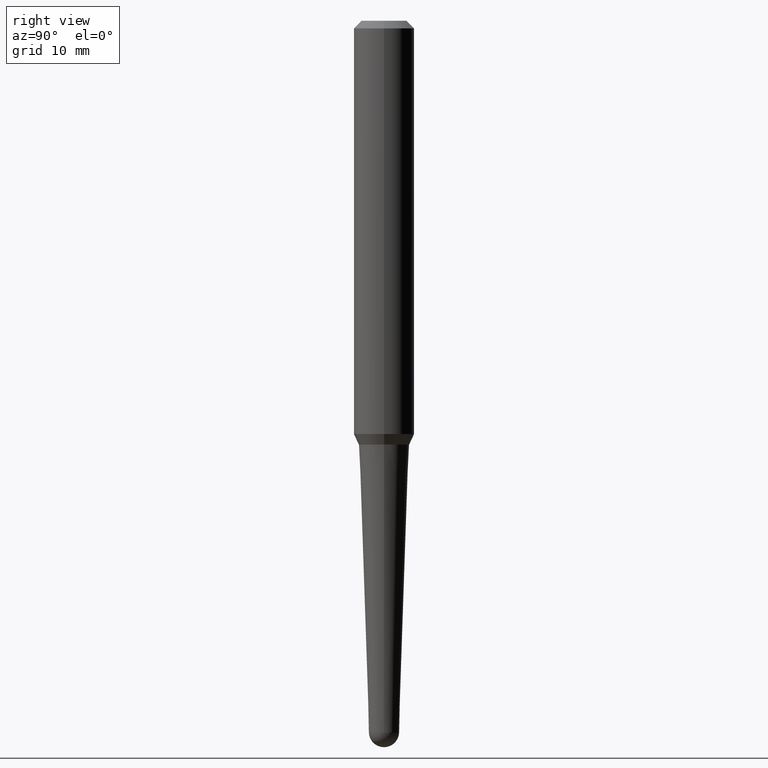
[diagram: clean part render]
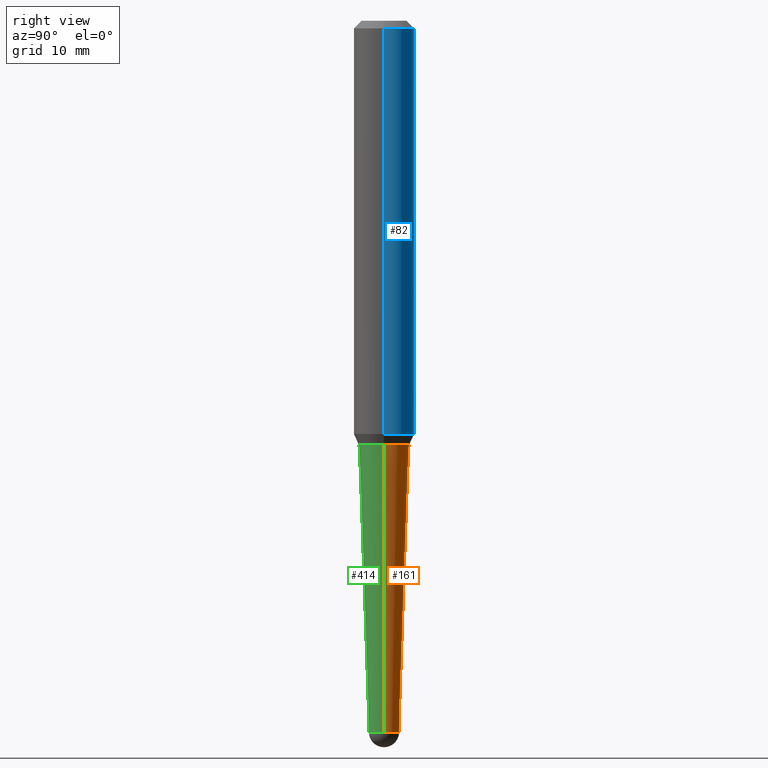
[diagram: same view with three faces highlighted in distinct colors, each labeled with its STEP entity id]
A machine part, right view with three faces highlighted in distinct colors.
Their STEP definitions:

[orange] entity #161 — the highlighted conical surface has half-angle 2 deg.
#11 = DIRECTION ( 'NONE',  ( 0.03489949670250089980, 3.245652539804591788E-15, 0.9993908270190957621 ) ) ;
#27 = CARTESIAN_POINT ( 'NONE',  ( 4.438186827023827801E-16, 0.06246192668868324332, -2.939681218543906294 ) ) ;
#29 = ORIENTED_EDGE ( 'NONE', *, *, #304, .T. ) ;
#32 = DIRECTION ( 'NONE',  ( -2.445468806185136597E-29, 3.491481338843145583E-15, 1.000000000000000000 ) ) ;
#34 = ORIENTED_EDGE ( 'NONE', *, *, #139, .F. ) ;
#42 = VECTOR ( 'NONE', #11, 39.37007874015748143 ) ;
#59 = CARTESIAN_POINT ( 'NONE',  ( 7.188898720077434965E-29, -1.026384211669372732E-14, -2.939681218543906294 ) ) ;
#62 = CIRCLE ( 'NONE', #308, 0.06246192668869351983 ) ;
#73 = CARTESIAN_POINT ( 'NONE',  ( -0.06246192668869351983, -7.595552536691422377E-15, -2.939681218543906294 ) ) ;
#92 = EDGE_CURVE ( 'NONE', #396, #457, #118, .T. ) ;
#114 = VERTEX_POINT ( 'NONE', #257 ) ;
#118 = LINE ( 'NONE', #199, #262 ) ;
#133 = AXIS2_PLACEMENT_3D ( 'NONE', #272, #215, #213 ) ;
#139 = EDGE_CURVE ( 'NONE', #247, #114, #170, .T. ) ;
#161 = ADVANCED_FACE ( 'NONE', ( #303 ), #284, .T. ) ;
#170 = LINE ( 'NONE', #306, #42 ) ;
#194 = EDGE_CURVE ( 'NONE', #247, #357, #62, .T. ) ;
#199 = CARTESIAN_POINT ( 'NONE',  ( -0.06246192668869351983, -9.820023433991416822E-15, -2.939681218543906294 ) ) ;
#207 = DIRECTION ( 'NONE',  ( 1.000000000000000000, -6.982962677686282488E-15, 0.000000000000000000 ) ) ;
#213 = DIRECTION ( 'NONE',  ( 1.000000000000000000, -6.982962677686282488E-15, 0.000000000000000000 ) ) ;
#214 = ORIENTED_EDGE ( 'NONE', *, *, #194, .T. ) ;
#215 = DIRECTION ( 'NONE',  ( -2.445468806185136597E-29, 3.491481338843145583E-15, 1.000000000000000000 ) ) ;
#224 = DIRECTION ( 'NONE',  ( 1.000000000000000000, -6.982962677686265133E-15, 0.000000000000000000 ) ) ;
#227 = CARTESIAN_POINT ( 'NONE',  ( 4.279570410823989044E-29, -6.110092342975505460E-15, -1.750000000000000222 ) ) ;
#241 = CARTESIAN_POINT ( 'NONE',  ( 7.188898720077434965E-29, -1.026384211669372732E-14, -2.939681218543906294 ) ) ;
#243 = DIRECTION ( 'NONE',  ( 1.000000000000000000, -6.982962677686282488E-15, 0.000000000000000000 ) ) ;
#245 = CARTESIAN_POINT ( 'NONE',  ( 0.06246192668869351983, -8.768188671052553083E-15, -2.939681218543906294 ) ) ;
#247 = VERTEX_POINT ( 'NONE', #245 ) ;
#253 = ORIENTED_EDGE ( 'NONE', *, *, #92, .T. ) ;
#257 = CARTESIAN_POINT ( 'NONE',  ( 0.1040065102901267385, -6.836365922567853711E-15, -1.750000000000000222 ) ) ;
#262 = VECTOR ( 'NONE', #371, 39.37007874015748143 ) ;
#272 = CARTESIAN_POINT ( 'NONE',  ( 7.188898720077434965E-29, -1.026384211669372732E-14, -2.939681218543906294 ) ) ;
#280 = ORIENTED_EDGE ( 'NONE', *, *, #413, .F. ) ;
#284 = CONICAL_SURFACE ( 'NONE', #455, 0.06246192668869351983, 0.03490658503988652156 ) ;
#300 = AXIS2_PLACEMENT_3D ( 'NONE', #227, #32, #224 ) ;
#303 = FACE_OUTER_BOUND ( 'NONE', #433, .T. ) ;
#304 = EDGE_CURVE ( 'NONE', #357, #396, #432, .T. ) ;
#306 = CARTESIAN_POINT ( 'NONE',  ( 0.06246192668869351983, -1.070001141953725167E-14, -2.939681218543906294 ) ) ;
#308 = AXIS2_PLACEMENT_3D ( 'NONE', #241, #417, #243 ) ;
#339 = CIRCLE ( 'NONE', #300, 0.1040065102901267385 ) ;
#357 = VERTEX_POINT ( 'NONE', #27 ) ;
#369 = DIRECTION ( 'NONE',  ( -2.445468806185136597E-29, 3.491481338843145583E-15, 1.000000000000000000 ) ) ;
#371 = DIRECTION ( 'NONE',  ( -0.03489949670250089980, 3.737330261384646804E-15, 0.9993908270190957621 ) ) ;
#396 = VERTEX_POINT ( 'NONE', #73 ) ;
#413 = EDGE_CURVE ( 'NONE', #114, #457, #339, .T. ) ;
#417 = DIRECTION ( 'NONE',  ( -2.445468806185136597E-29, 3.491481338843145583E-15, 1.000000000000000000 ) ) ;
#432 = CIRCLE ( 'NONE', #133, 0.06246192668869351983 ) ;
#433 = EDGE_LOOP ( 'NONE', ( #29, #253, #280, #34, #214 ) ) ;
#455 = AXIS2_PLACEMENT_3D ( 'NONE', #59, #369, #207 ) ;
#457 = VERTEX_POINT ( 'NONE', #461 ) ;
#461 = CARTESIAN_POINT ( 'NONE',  ( -0.1040065102901267385, -5.371081639391429509E-15, -1.750000000000000222 ) ) ;

[blue] entity #82 — the highlighted cylindrical surface (edge-blend (fillet) strip) has radius 3.175 mm, axis along (-0, 0, 1).
#7 = DIRECTION ( 'NONE',  ( 1.000000000000000000, -6.982962677686266711E-15, 4.852736867747369010E-29 ) ) ;
#20 = VECTOR ( 'NONE', #116, 39.37007874015748143 ) ;
#22 = CARTESIAN_POINT ( 'NONE',  ( 0.1250000000000001943, -6.831515564972978588E-15, -1.706623822952039404 ) ) ;
#24 = EDGE_LOOP ( 'NONE', ( #347, #26, #391, #392 ) ) ;
#26 = ORIENTED_EDGE ( 'NONE', *, *, #157, .T. ) ;
#68 = CARTESIAN_POINT ( 'NONE',  ( -0.1249999999999996808, -2.145698591350394182E-15, -0.03125000000000002082 ) ) ;
#80 = DIRECTION ( 'NONE',  ( -2.445468806185136597E-29, 3.491481338843145583E-15, 1.000000000000000000 ) ) ;
#82 = ADVANCED_FACE ( 'NONE', ( #91 ), #153, .T. ) ;
#85 = DIRECTION ( 'NONE',  ( -2.445468806185136877E-29, 3.491481338843145188E-15, 1.000000000000000000 ) ) ;
#91 = FACE_OUTER_BOUND ( 'NONE', #24, .T. ) ;
#113 = LINE ( 'NONE', #285, #20 ) ;
#116 = DIRECTION ( 'NONE',  ( -2.445468806185136877E-29, 3.491481338843145188E-15, 1.000000000000000000 ) ) ;
#136 = VERTEX_POINT ( 'NONE', #202 ) ;
#153 = CYLINDRICAL_SURFACE ( 'NONE', #382, 0.1249999999999999306 ) ;
#157 = EDGE_CURVE ( 'NONE', #136, #313, #404, .T. ) ;
#169 = CIRCLE ( 'NONE', #421, 0.1249999999999996808 ) ;
#197 = AXIS2_PLACEMENT_3D ( 'NONE', #356, #220, #326 ) ;
#202 = CARTESIAN_POINT ( 'NONE',  ( -0.1250000000000001943, -5.070466810562066862E-15, -1.706623822952039404 ) ) ;
#220 = DIRECTION ( 'NONE',  ( -2.445468806185136597E-29, 3.491481338843145583E-15, 1.000000000000000000 ) ) ;
#240 = DIRECTION ( 'NONE',  ( 1.000000000000000000, -6.982962677686266711E-15, 0.000000000000000000 ) ) ;
#254 = CARTESIAN_POINT ( 'NONE',  ( 0.1249999999999996808, -9.819791265496294812E-16, -0.03125000000000002082 ) ) ;
#276 = CIRCLE ( 'NONE', #197, 0.1250000000000001943 ) ;
#285 = CARTESIAN_POINT ( 'NONE',  ( 0.1249999999999999306, -8.728703347107807750E-16, 5.931196827434357896E-16 ) ) ;
#290 = CARTESIAN_POINT ( 'NONE',  ( -1.450455682483482035E-44, 2.070866303999251778E-30, 5.931196827434296760E-16 ) ) ;
#307 = CARTESIAN_POINT ( 'NONE',  ( 7.642090019328557120E-31, -1.091087918388483734E-16, -0.03125000000000002082 ) ) ;
#313 = VERTEX_POINT ( 'NONE', #68 ) ;
#320 = EDGE_CURVE ( 'NONE', #388, #313, #169, .T. ) ;
#326 = DIRECTION ( 'NONE',  ( 1.000000000000000000, -6.982962677686267499E-15, 0.000000000000000000 ) ) ;
#347 = ORIENTED_EDGE ( 'NONE', *, *, #400, .T. ) ;
#348 = DIRECTION ( 'NONE',  ( -2.445468806185136597E-29, 3.491481338843145583E-15, 1.000000000000000000 ) ) ;
#356 = CARTESIAN_POINT ( 'NONE',  ( 4.173495322921637163E-29, -5.958645230262193672E-15, -1.706623822952039404 ) ) ;
#376 = VERTEX_POINT ( 'NONE', #22 ) ;
#377 = CARTESIAN_POINT ( 'NONE',  ( -0.1249999999999999306, 8.881784197001268101E-16, 5.931196827434234637E-16 ) ) ;
#382 = AXIS2_PLACEMENT_3D ( 'NONE', #290, #80, #7 ) ;
#388 = VERTEX_POINT ( 'NONE', #254 ) ;
#391 = ORIENTED_EDGE ( 'NONE', *, *, #320, .F. ) ;
#392 = ORIENTED_EDGE ( 'NONE', *, *, #442, .F. ) ;
#400 = EDGE_CURVE ( 'NONE', #376, #136, #276, .T. ) ;
#404 = LINE ( 'NONE', #377, #449 ) ;
#421 = AXIS2_PLACEMENT_3D ( 'NONE', #307, #348, #240 ) ;
#442 = EDGE_CURVE ( 'NONE', #376, #388, #113, .T. ) ;
#449 = VECTOR ( 'NONE', #85, 39.37007874015748143 ) ;

[green] entity #414 — the highlighted conical surface has half-angle 2 deg.
#4 = EDGE_CURVE ( 'NONE', #457, #114, #172, .T. ) ;
#5 = CARTESIAN_POINT ( 'NONE',  ( 7.188898720077434965E-29, -1.026384211669372732E-14, -2.939681218543906294 ) ) ;
#11 = DIRECTION ( 'NONE',  ( 0.03489949670250089980, 3.245652539804591788E-15, 0.9993908270190957621 ) ) ;
#28 = DIRECTION ( 'NONE',  ( -2.445468806185136597E-29, 3.491481338843145583E-15, 1.000000000000000000 ) ) ;
#42 = VECTOR ( 'NONE', #11, 39.37007874015748143 ) ;
#58 = EDGE_CURVE ( 'NONE', #396, #70, #390, .T. ) ;
#67 = ORIENTED_EDGE ( 'NONE', *, *, #246, .T. ) ;
#70 = VERTEX_POINT ( 'NONE', #301 ) ;
#73 = CARTESIAN_POINT ( 'NONE',  ( -0.06246192668869351983, -7.595552536691422377E-15, -2.939681218543906294 ) ) ;
#92 = EDGE_CURVE ( 'NONE', #396, #457, #118, .T. ) ;
#103 = DIRECTION ( 'NONE',  ( 1.000000000000000000, -6.982962677686282488E-15, 0.000000000000000000 ) ) ;
#107 = EDGE_LOOP ( 'NONE', ( #287, #299, #67, #292, #190 ) ) ;
#110 = CIRCLE ( 'NONE', #401, 0.06246192668869351983 ) ;
#114 = VERTEX_POINT ( 'NONE', #257 ) ;
#118 = LINE ( 'NONE', #199, #262 ) ;
#138 = CONICAL_SURFACE ( 'NONE', #456, 0.06246192668869351983, 0.03490658503988652156 ) ;
#139 = EDGE_CURVE ( 'NONE', #247, #114, #170, .T. ) ;
#170 = LINE ( 'NONE', #306, #42 ) ;
#172 = CIRCLE ( 'NONE', #298, 0.1040065102901267385 ) ;
#182 = DIRECTION ( 'NONE',  ( 1.000000000000000000, -6.982962677686265133E-15, 0.000000000000000000 ) ) ;
#190 = ORIENTED_EDGE ( 'NONE', *, *, #4, .F. ) ;
#191 = DIRECTION ( 'NONE',  ( -2.445468806185136597E-29, 3.491481338843145583E-15, 1.000000000000000000 ) ) ;
#199 = CARTESIAN_POINT ( 'NONE',  ( -0.06246192668869351983, -9.820023433991416822E-15, -2.939681218543906294 ) ) ;
#218 = DIRECTION ( 'NONE',  ( -2.445468806185136597E-29, 3.491481338843145583E-15, 1.000000000000000000 ) ) ;
#226 = CARTESIAN_POINT ( 'NONE',  ( 7.188898720077434965E-29, -1.026384211669372732E-14, -2.939681218543906294 ) ) ;
#245 = CARTESIAN_POINT ( 'NONE',  ( 0.06246192668869351983, -8.768188671052553083E-15, -2.939681218543906294 ) ) ;
#246 = EDGE_CURVE ( 'NONE', #70, #247, #110, .T. ) ;
#247 = VERTEX_POINT ( 'NONE', #245 ) ;
#257 = CARTESIAN_POINT ( 'NONE',  ( 0.1040065102901267385, -6.836365922567853711E-15, -1.750000000000000222 ) ) ;
#262 = VECTOR ( 'NONE', #371, 39.37007874015748143 ) ;
#287 = ORIENTED_EDGE ( 'NONE', *, *, #92, .F. ) ;
#289 = DIRECTION ( 'NONE',  ( 1.000000000000000000, -6.982962677686282488E-15, 0.000000000000000000 ) ) ;
#292 = ORIENTED_EDGE ( 'NONE', *, *, #139, .T. ) ;
#298 = AXIS2_PLACEMENT_3D ( 'NONE', #349, #28, #182 ) ;
#299 = ORIENTED_EDGE ( 'NONE', *, *, #58, .T. ) ;
#301 = CARTESIAN_POINT ( 'NONE',  ( -4.361693028434480712E-16, -0.06246192668870341469, -2.939681218543906294 ) ) ;
#306 = CARTESIAN_POINT ( 'NONE',  ( 0.06246192668869351983, -1.070001141953725167E-14, -2.939681218543906294 ) ) ;
#349 = CARTESIAN_POINT ( 'NONE',  ( 4.279570410823989044E-29, -6.110092342975505460E-15, -1.750000000000000222 ) ) ;
#358 = AXIS2_PLACEMENT_3D ( 'NONE', #226, #191, #361 ) ;
#361 = DIRECTION ( 'NONE',  ( 1.000000000000000000, -6.982962677686282488E-15, 0.000000000000000000 ) ) ;
#364 = FACE_OUTER_BOUND ( 'NONE', #107, .T. ) ;
#371 = DIRECTION ( 'NONE',  ( -0.03489949670250089980, 3.737330261384646804E-15, 0.9993908270190957621 ) ) ;
#384 = CARTESIAN_POINT ( 'NONE',  ( 7.188898720077434965E-29, -1.026384211669372732E-14, -2.939681218543906294 ) ) ;
#390 = CIRCLE ( 'NONE', #358, 0.06246192668869351983 ) ;
#396 = VERTEX_POINT ( 'NONE', #73 ) ;
#401 = AXIS2_PLACEMENT_3D ( 'NONE', #384, #218, #103 ) ;
#402 = DIRECTION ( 'NONE',  ( -2.445468806185136597E-29, 3.491481338843145583E-15, 1.000000000000000000 ) ) ;
#414 = ADVANCED_FACE ( 'NONE', ( #364 ), #138, .T. ) ;
#456 = AXIS2_PLACEMENT_3D ( 'NONE', #5, #402, #289 ) ;
#457 = VERTEX_POINT ( 'NONE', #461 ) ;
#461 = CARTESIAN_POINT ( 'NONE',  ( -0.1040065102901267385, -5.371081639391429509E-15, -1.750000000000000222 ) ) ;